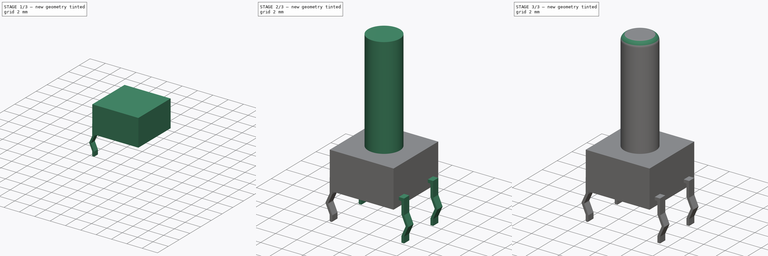
[diagram: build sequence overview — one tinted view per stage of 3, left to right]
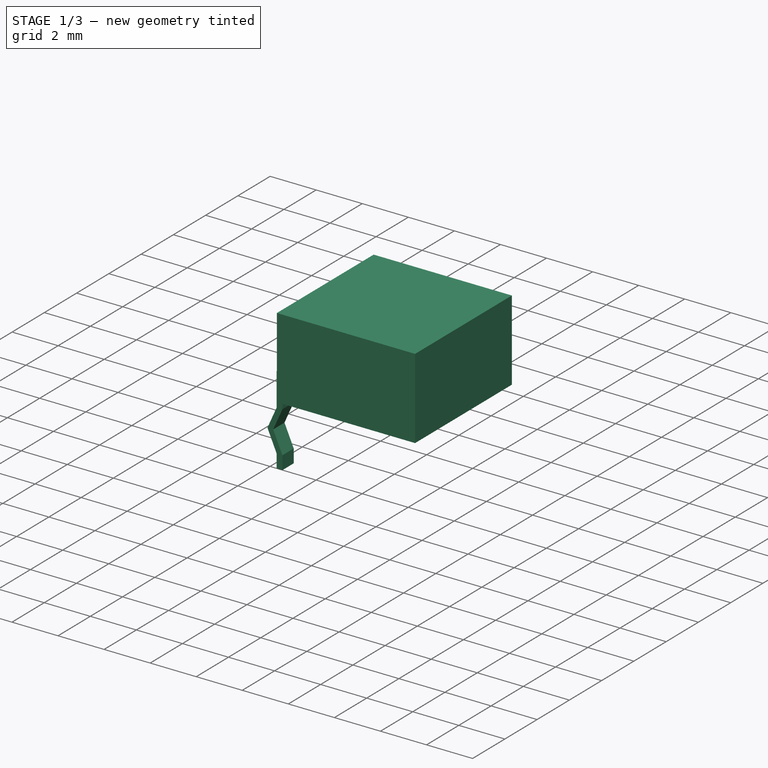
[diagram: stage 1 of 3 — iso view after this stage's code; geometry added in this stage tinted green]
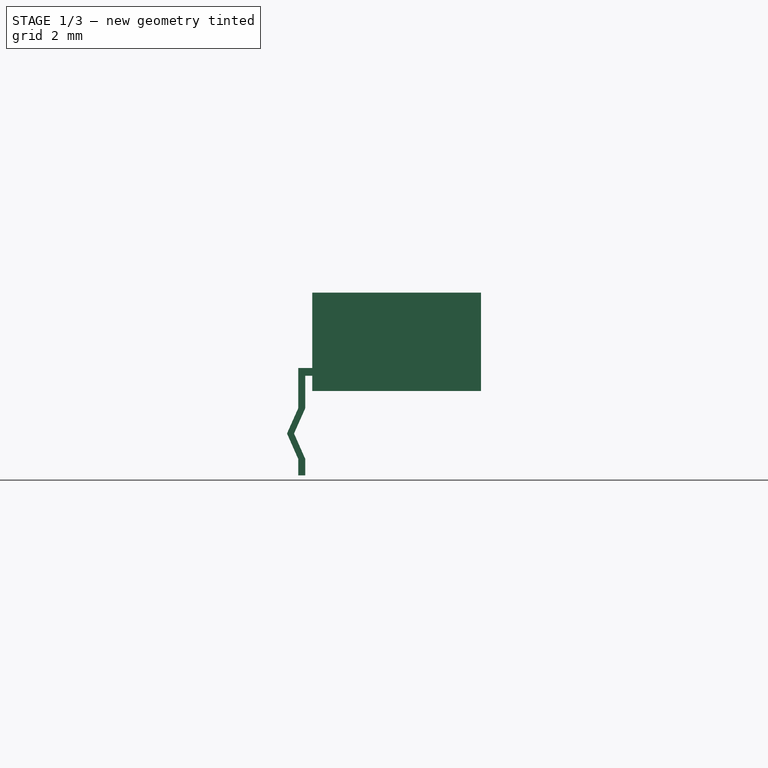
[diagram: stage 1 of 3 — front view after this stage's code; geometry added in this stage tinted green]
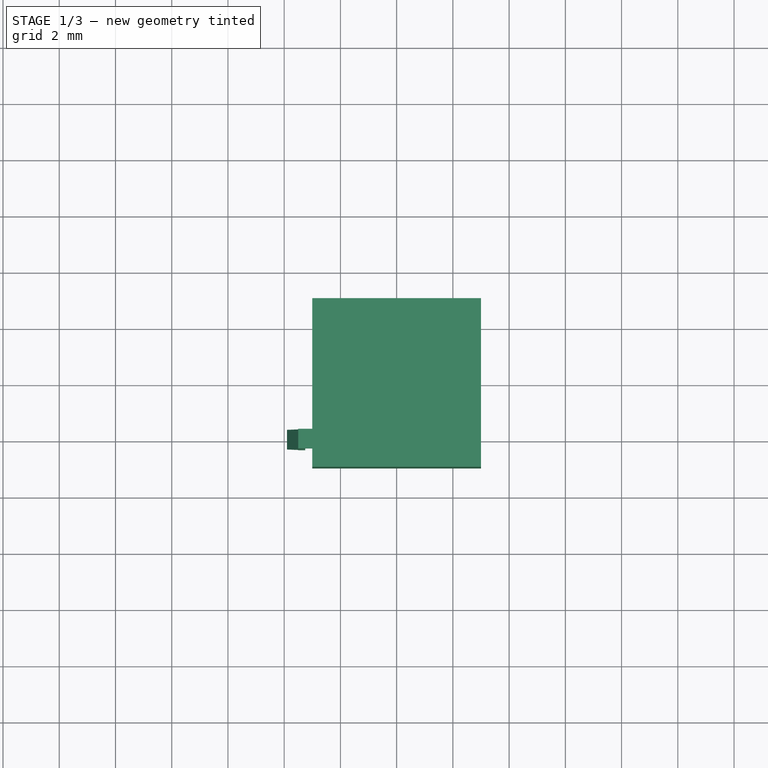
[diagram: stage 1 of 3 — top view after this stage's code; geometry added in this stage tinted green]
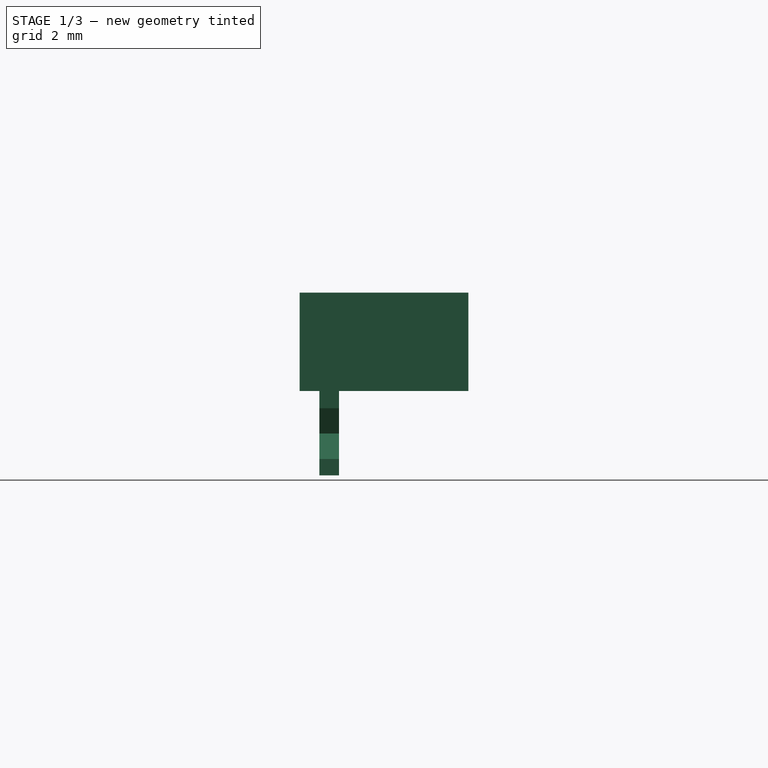
[diagram: stage 1 of 3 — right view after this stage's code; geometry added in this stage tinted green]
FCSTD DOCUMENT  (FreeCAD 0.20R29410 (Git))
Label: TS-1095PD-A16B2-D2
License: All rights reserved
LicenseURL: http://en.wikipedia.org/wiki/All_rights_reserved
objects: Sketcher::SketchObject×3, PartDesign::Pad×2, PartDesign::Revolution×2, PartDesign::Plane×2, PartDesign::Fillet×2, PartDesign::Body×2, PartDesign::Mirrored×2, PartDesign::MultiTransform×1, App::Part×1
note: 22 computed .brp shape members not serialized (recipe doc carries the construction recipe); baked Part::Feature solids carry a one-line shape summary decoded from their .brp

FEATURE [Sketcher::SketchObject] Sketch
  FullyConstrained = true
  MapMode = 5
  Placement = pos=(0,0,0) rot=(1,0,0;1.5708rad)
  Support = -> [XZ_Plane]
  sketch-geometry (5):
    g0: LineSegment StartX=-3 StartY=3.5 StartZ=0 EndX=-3 EndY=0 EndZ=0
    g1: LineSegment StartX=-3 StartY=0 StartZ=0 EndX=3 EndY=0 EndZ=0
    g2: LineSegment StartX=3 StartY=0 StartZ=0 EndX=3 EndY=3.5 EndZ=0
    g3: LineSegment StartX=3 StartY=3.5 StartZ=0 EndX=-3 EndY=3.5 EndZ=0
    g4: GeomPoint X=0 Y=1.75 Z=0
  constraints (13):
    c: Coincident(g0,g1)
    c: Coincident(g1,g2)
    c: Coincident(g2,g3)
    c: Coincident(g3,g0)
    c: Horizontal(g1)
    c: Horizontal(g3)
    c: Vertical(g0)
    c: Vertical(g2)
    c: Symmetric(g1,g0,g4)
    c: PointOnObject(g4,g-2)
    c: PointOnObject(g1,g-1)
    c: DistanceX(g3,g3) = 6
    c: DistanceY(g2,g2) = 3.5
FEATURE [PartDesign::Pad] Pad
  Direction = (0,-1,2e-16)
  Length = 6
  Length2 = 10
  Midplane = true
  Placement = pos=(0,0,0) rot=(1,0,0;1.5708rad)
  Profile = -> Sketch
  ReferenceAxis = -> Sketch [N_Axis]
  Type = 0
FEATURE [PartDesign::Body] Body001
  Group = -> [Sketch001,Revolution,DatumPlane,Revolution001,Fillet]
  Origin = -> Origin001
  Tip = -> Fillet
FEATURE [PartDesign::Plane] DatumPlane001
  AttachmentOffset = pos=(0,0,1.95) rot=(0,0,1;0rad)
  Length = 60
  MapMode = 5
  Placement = pos=(0,-1.95,-4e-16) rot=(1,0,0;1.5708rad)
  ResizeMode = 0
  Support = -> [XZ_Plane]
  Width = 60
FEATURE [Sketcher::SketchObject] Sketch002
  FullyConstrained = false
  MapMode = 5
  Placement = pos=(0,-1.95,-4e-16) rot=(1,0,0;1.5708rad)
  Support = -> [DatumPlane001]
  sketch-geometry (15):
    g0: LineSegment StartX=-2.63055 StartY=0.541397 StartZ=0 EndX=-3.25 EndY=0.541397 EndZ=0
    g1: LineSegment StartX=-3.25 StartY=0.541397 StartZ=0 EndX=-3.25 EndY=-0.610376 EndZ=0
    g2: LineSegment StartX=-3.25 StartY=-0.610376 StartZ=0 EndX=-3.65 EndY=-1.51038 EndZ=0
    g3: LineSegment StartX=-3.65 StartY=-1.51038 StartZ=0 EndX=-3.25 EndY=-2.41822 EndZ=0
    g4: LineSegment StartX=-3.25 StartY=-2.41822 StartZ=0 EndX=-3.25 EndY=-3 EndZ=0
    g5: LineSegment StartX=-3.25 StartY=-3 StartZ=0 EndX=-3.5 EndY=-3 EndZ=0
    g6: LineSegment StartX=-3.5 StartY=-3 StartZ=0 EndX=-3.5 EndY=-2.41822 EndZ=0
    g7: LineSegment StartX=-3.5 StartY=-2.41822 StartZ=0 EndX=-3.9 EndY=-1.51038 EndZ=0
    g8: LineSegment StartX=-3.9 StartY=-1.51038 StartZ=0 EndX=-3.5 EndY=-0.610376 EndZ=0
    g9: LineSegment StartX=-3.5 StartY=-0.610376 StartZ=0 EndX=-3.5 EndY=0.819053 EndZ=0
    g10: LineSegment StartX=-3.5 StartY=0.819053 StartZ=0 EndX=-2.63055 EndY=0.819053 EndZ=0
    g11: LineSegment StartX=-2.63055 StartY=0.819053 StartZ=0 EndX=-2.63055 EndY=0.541397 EndZ=0
    g12: LineSegment StartX=-3.5 StartY=-2.41822 StartZ=0 EndX=-3.25 EndY=-2.41822 EndZ=0
    g13: LineSegment StartX=-3.9 StartY=-1.51038 StartZ=0 EndX=-3.65 EndY=-1.51038 EndZ=0
    g14: LineSegment StartX=-3.5 StartY=-0.610376 StartZ=0 EndX=-3.25 EndY=-0.610376 EndZ=0
  constraints (36):
    c: Horizontal(g0)
    c: Coincident(g0,g1)
    c: Vertical(g1)
    c: Coincident(g1,g2)
    c: Coincident(g2,g3)
    c: Coincident(g3,g4)
    c: Vertical(g4)
    c: Coincident(g4,g5)
    c: Horizontal(g5)
    c: Coincident(g5,g6)
    c: Vertical(g6)
    c: Coincident(g6,g7)
    c: Coincident(g7,g8)
    c: Coincident(g8,g9)
    c: Vertical(g9)
    c: Coincident(g9,g10)
    c: Horizontal(g10)
    c: Coincident(g10,g11)
    c: Coincident(g11,g0)
    c: DistanceX(g7) = -3.9
    c: Horizontal(g6,g3)
    c: Horizontal(g2,g7)
    c: DistanceX(g4) = -3.25
    c: DistanceY(g4) = -3
    c: Vertical(g1,g3)
    c: Vertical(g6,g8)
    c: Vertical(g11)
    c: Horizontal(g8,g1)
    c: Coincident(g12,g6)
    c: Coincident(g12,g3)
    c: Coincident(g13,g7)
    c: Coincident(g13,g2)
    c: Coincident(g14,g8)
    c: Coincident(g14,g1)
    c: Equal(g14,g13)
    c: DistanceX(g13,g13) = 0.25
FEATURE [PartDesign::Pad] Pad001
  BaseFeature = -> Pad
  Direction = (0,-1,-2e-16)
  Length = 0.7
  Length2 = 10
  Midplane = true
  Placement = pos=(0,0,0) rot=(1,0,0;1.5708rad)
  Profile = -> Sketch002
  ReferenceAxis = -> Sketch002 [N_Axis]
  Type = 0
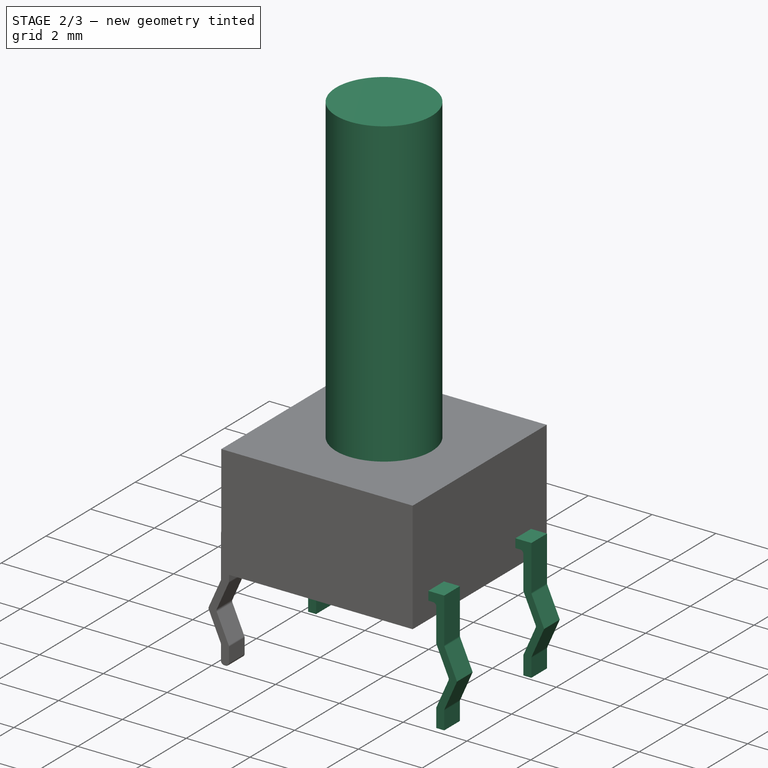
[diagram: stage 2 of 3 — iso view after this stage's code; geometry added in this stage tinted green]
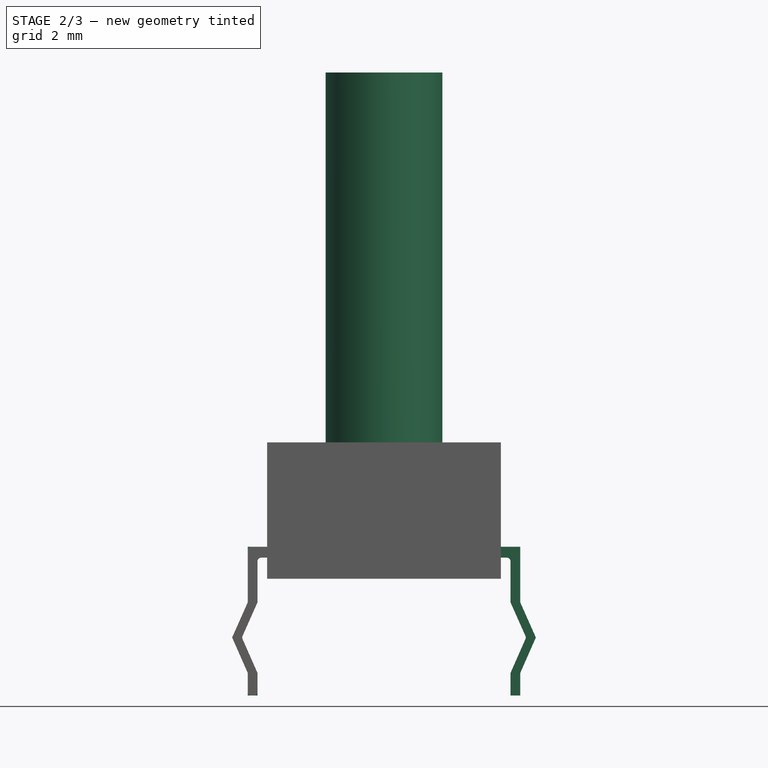
[diagram: stage 2 of 3 — front view after this stage's code; geometry added in this stage tinted green]
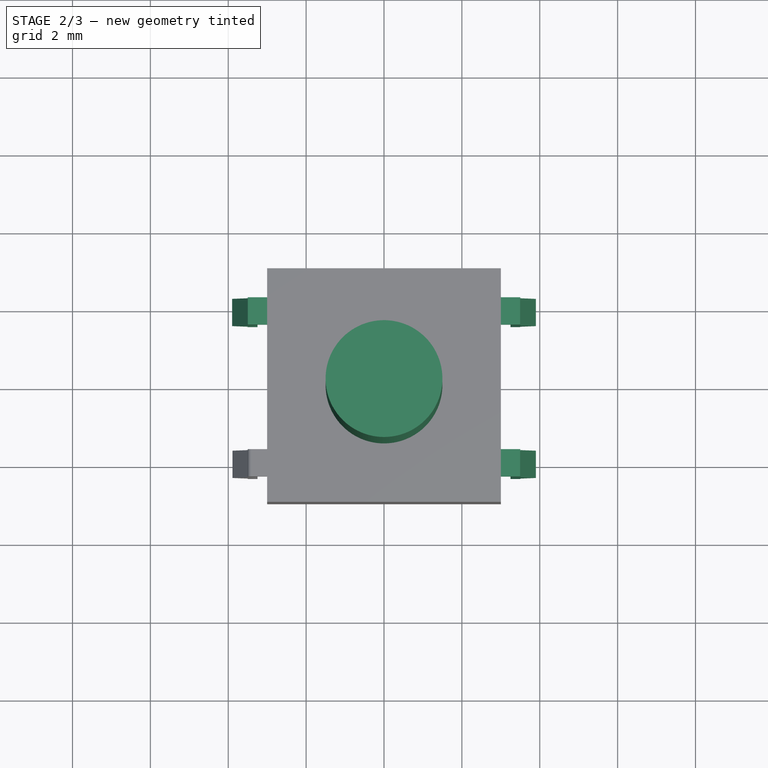
[diagram: stage 2 of 3 — top view after this stage's code; geometry added in this stage tinted green]
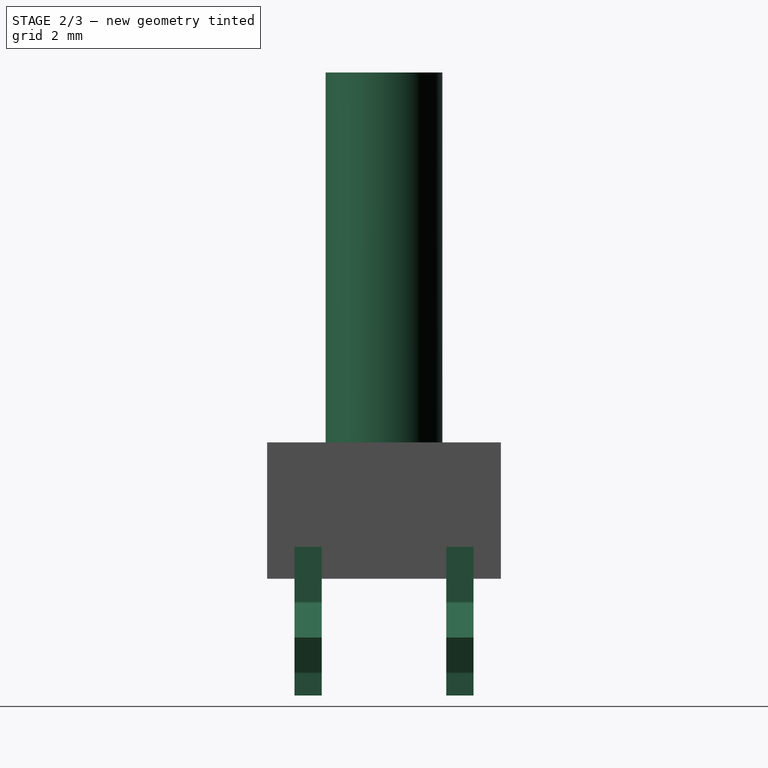
[diagram: stage 2 of 3 — right view after this stage's code; geometry added in this stage tinted green]
FEATURE [Sketcher::SketchObject] Sketch001
  FullyConstrained = true
  MapMode = 5
  Placement = pos=(0,0,0) rot=(1,0,0;1.5708rad)
  Support = -> [XZ_Plane001]
  sketch-geometry (4):
    g0: LineSegment StartX=0 StartY=3.5 StartZ=0 EndX=-1.5 EndY=3.5 EndZ=0
    g1: LineSegment StartX=-1.5 StartY=3.5 StartZ=0 EndX=-1.5 EndY=13 EndZ=0
    g2: LineSegment StartX=-1.5 StartY=13 StartZ=0 EndX=0 EndY=13 EndZ=0
    g3: LineSegment StartX=0 StartY=13 StartZ=0 EndX=0 EndY=3.5 EndZ=0
  constraints (12):
    c: PointOnObject(g0,g-2)
    c: Horizontal(g0)
    c: Coincident(g0,g1)
    c: Vertical(g1)
    c: Coincident(g1,g2)
    c: Horizontal(g2)
    c: Coincident(g2,g3)
    c: Coincident(g3,g0)
    c: Vertical(g3)
    c: DistanceX(g2,g2) = 1.5
    c: DistanceY(g0) = 3.5
    c: DistanceY(g2) = 13
FEATURE [PartDesign::Revolution] Revolution
  Angle = 360
  Axis = (0,2e-16,1)
  Base = (0,0,0)
  Placement = pos=(0,0,0) rot=(1,0,0;1.5708rad)
  Profile = -> Sketch001
  ReferenceAxis = -> Sketch001 [V_Axis]
FEATURE [PartDesign::Fillet] Fillet001
  Base = -> Pad001 [Edge31,Edge42,Edge43,Edge44,Edge45,Edge46,Edge48,Edge41,Edge47,Edge18]
  BaseFeature = -> Pad001
  Placement = pos=(0,0,0) rot=(1,0,0;1.5708rad)
  Radius = 0.1
  SupportTransform = false
  UseAllEdges = false
FEATURE [PartDesign::Mirrored] Mirrored
  MirrorPlane = -> XZ_Plane
  Placement = pos=(0,0,0) rot=(1,0,0;1.5708rad)
FEATURE [PartDesign::Mirrored] Mirrored001
  MirrorPlane = -> YZ_Plane
  Placement = pos=(0,0,0) rot=(1,0,0;1.5708rad)
FEATURE [PartDesign::MultiTransform] MultiTransform
  BaseFeature = -> Fillet001
  Originals = -> [Fillet001,Pad001]
  Placement = pos=(0,0,0) rot=(1,0,0;1.5708rad)
  Transformations = -> [Mirrored,Mirrored001]
FEATURE [PartDesign::Body] Body
  Group = -> [Sketch,Pad,DatumPlane001,Sketch002,Pad001,Fillet001,MultiTransform,Mirrored,Mirrored001]
  Origin = -> Origin
  Tip = -> MultiTransform
FEATURE [App::Part] Part
  Group = -> [Body,Body001]
  Origin = -> Origin002
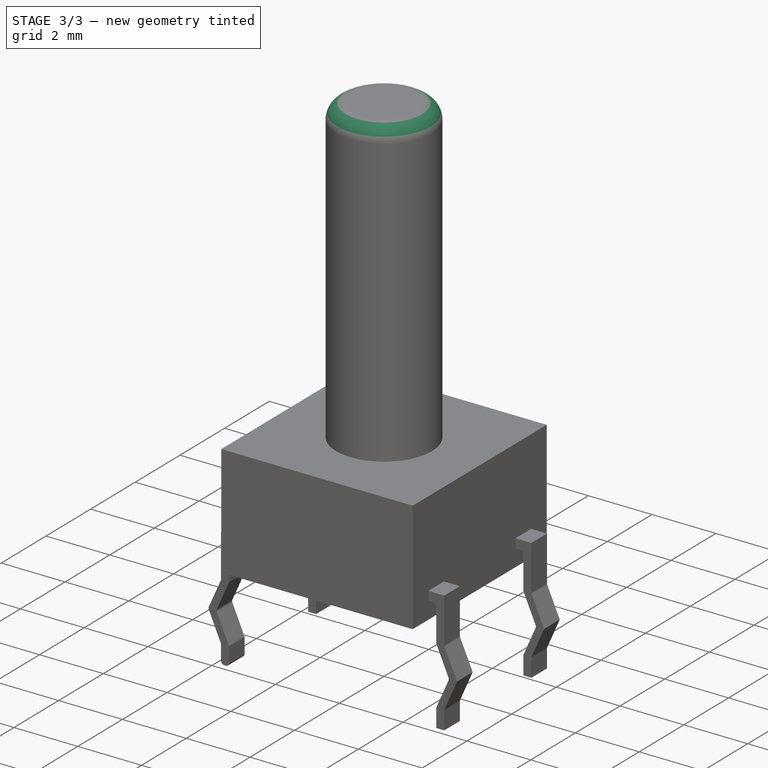
[diagram: stage 3 of 3 — iso view after this stage's code; geometry added in this stage tinted green]
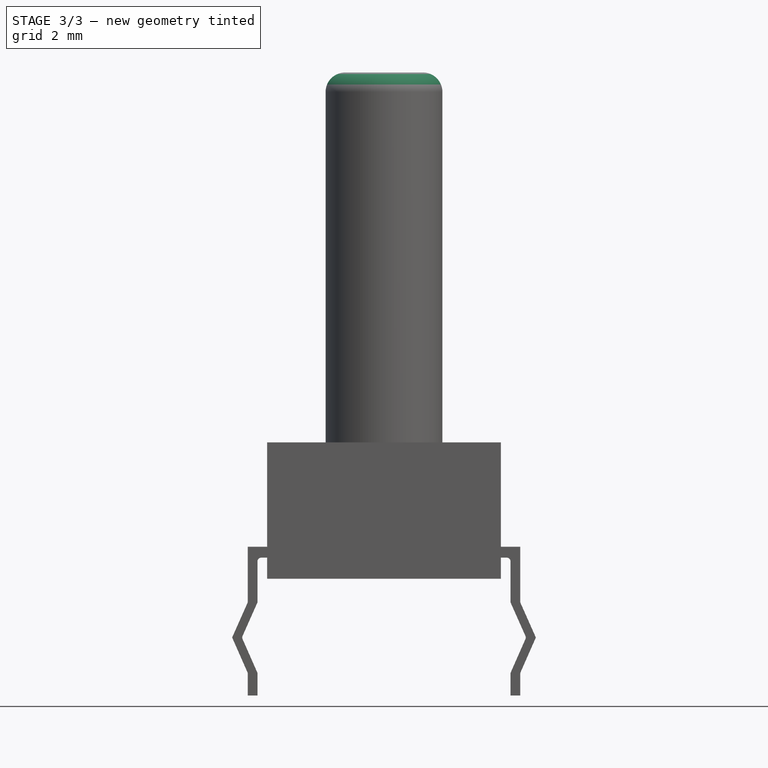
[diagram: stage 3 of 3 — front view after this stage's code; geometry added in this stage tinted green]
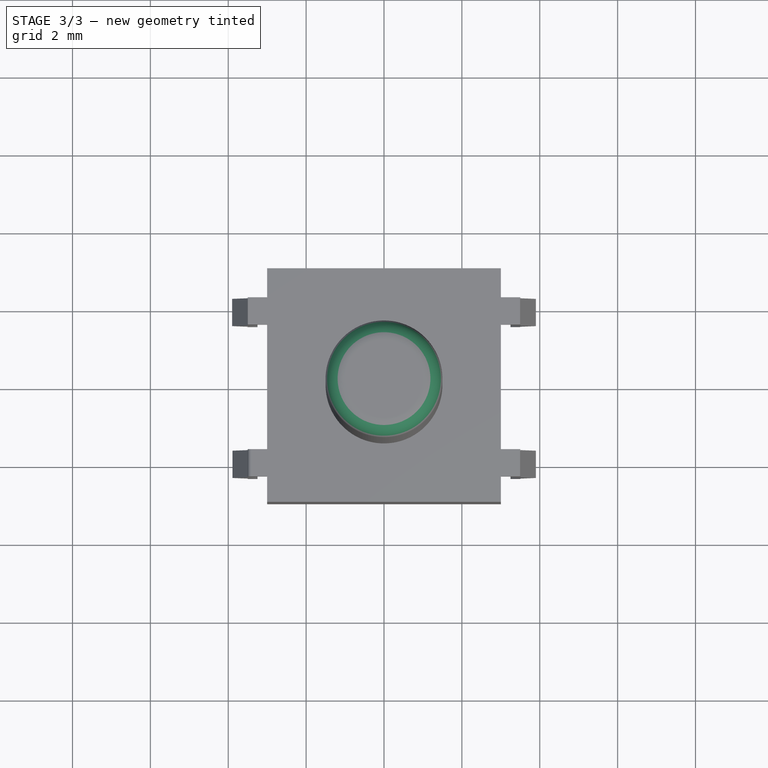
[diagram: stage 3 of 3 — top view after this stage's code; geometry added in this stage tinted green]
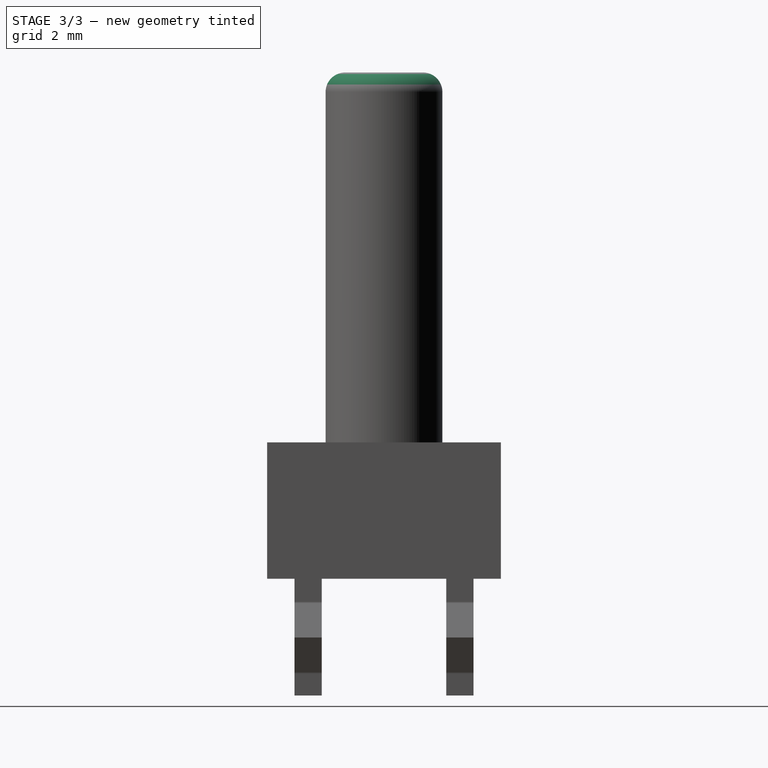
[diagram: stage 3 of 3 — right view after this stage's code; geometry added in this stage tinted green]
FEATURE [PartDesign::Plane] DatumPlane
  AttachmentOffset = pos=(0,0,3.5) rot=(0,0,1;0rad)
  Length = 60
  MapMode = 5
  Placement = pos=(0,0,3.5) rot=(0,0,1;0rad)
  ResizeMode = 0
  Support = -> [XY_Plane001]
  Width = 60
FEATURE [PartDesign::Revolution] Revolution001
  Angle = 360
  Axis = (1e-16,1,-1e-16)
  Base = (0,0,0)
  BaseFeature = -> Revolution
  Placement = pos=(0,0,0) rot=(1,0,0;1.5708rad)
  Profile = -> Revolution [Edge2]
  ReferenceAxis = -> Y_Axis001
FEATURE [PartDesign::Fillet] Fillet
  Base = -> Revolution001 [Edge3]
  BaseFeature = -> Revolution001
  Placement = pos=(0,0,0) rot=(1,0,0;1.5708rad)
  Radius = 0.5
  SupportTransform = false
  UseAllEdges = false
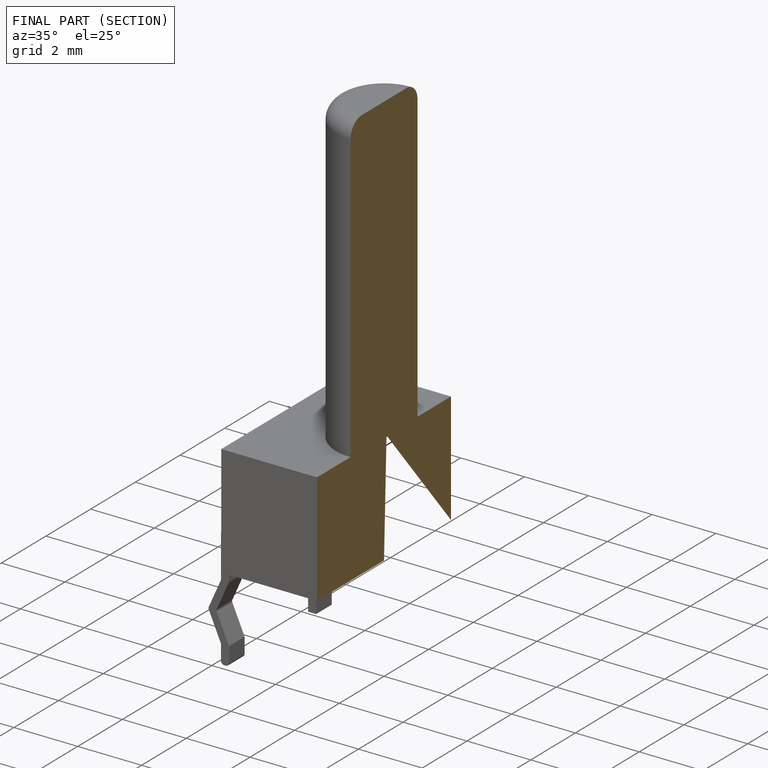
[diagram: finished part — half-section view (interior)]
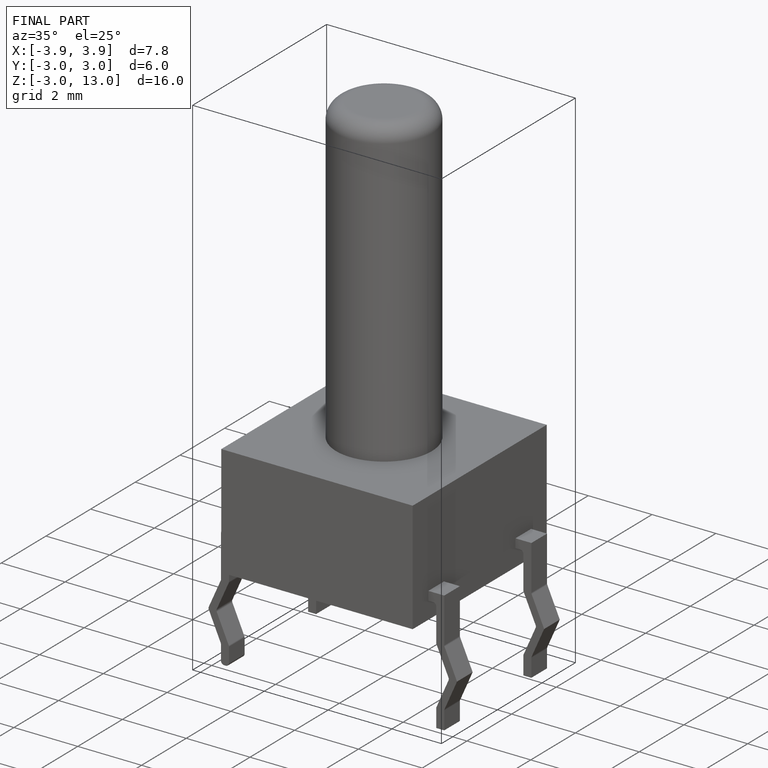
[diagram: finished part — iso view with bounding-box wireframe]
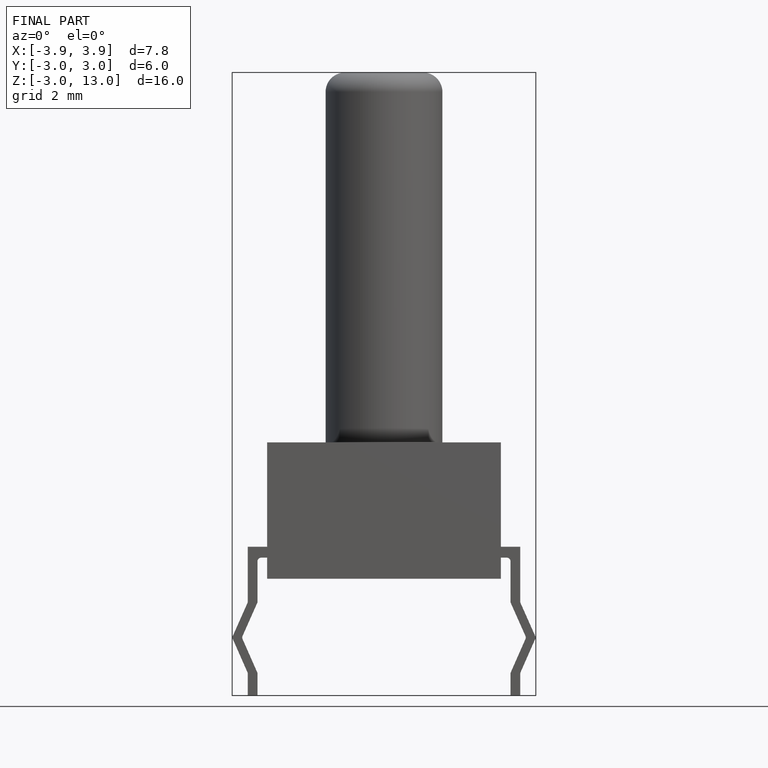
[diagram: finished part — front view with bounding-box wireframe]
